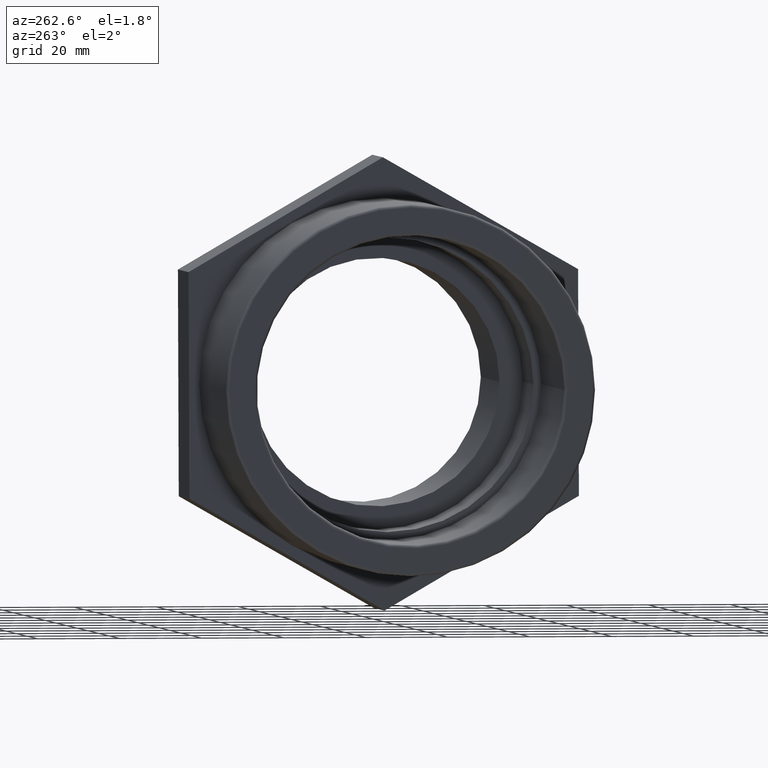
[diagram: clean part render]
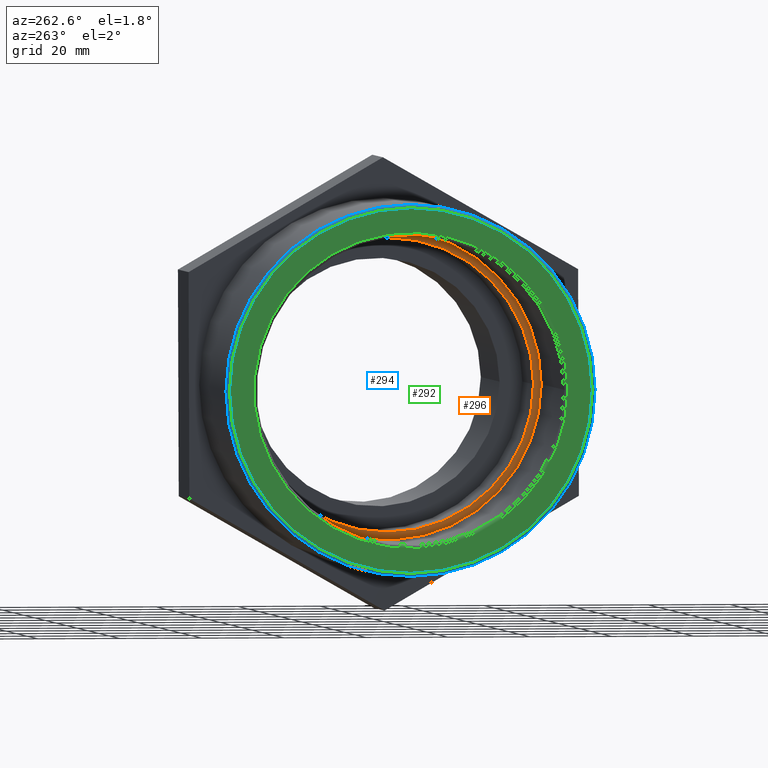
[diagram: same view with three faces highlighted in distinct colors, each labeled with its STEP entity id]
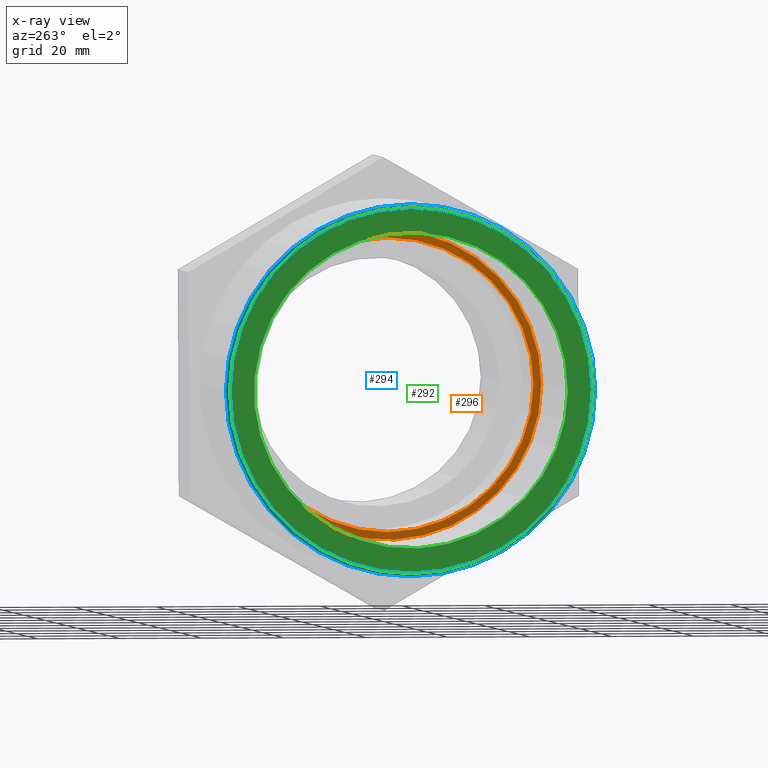
[diagram: x-ray of the same camera — body ghosted, the three highlighted faces saturated]
A machine part, auxiliary view with three faces highlighted in distinct colors.
The next image is the same camera in x-ray (body ghosted, the three faces saturated) — at least one of them is partly hidden behind the body in this view.
Their STEP definitions:

[orange] entity #296 — the highlighted planar face has unit normal (-1, -0, 0).
#30=FACE_BOUND('',#101,.T.);
#44=CIRCLE('',#326,37.5);
#47=CIRCLE('',#332,35.625);
#69=FACE_OUTER_BOUND('',#100,.T.);
#100=EDGE_LOOP('',(#248));
#101=EDGE_LOOP('',(#249));
#167=VERTEX_POINT('',#491);
#170=VERTEX_POINT('',#500);
#199=EDGE_CURVE('',#167,#167,#44,.T.);
#202=EDGE_CURVE('',#170,#170,#47,.T.);
#248=ORIENTED_EDGE('',*,*,#199,.T.);
#249=ORIENTED_EDGE('',*,*,#202,.F.);
#276=PLANE('',#331);
#296=ADVANCED_FACE('',(#69,#30),#276,.T.);
#326=AXIS2_PLACEMENT_3D('',#492,#404,#405);
#331=AXIS2_PLACEMENT_3D('',#499,#414,#415);
#332=AXIS2_PLACEMENT_3D('',#501,#416,#417);
#404=DIRECTION('center_axis',(-1.,-6.73555739531044E-16,0.));
#405=DIRECTION('ref_axis',(0.,0.,1.));
#414=DIRECTION('center_axis',(-1.,-6.73555739531044E-16,0.));
#415=DIRECTION('ref_axis',(0.,0.,1.));
#416=DIRECTION('center_axis',(-1.,-6.73555739531044E-16,0.));
#417=DIRECTION('ref_axis',(0.,0.,1.));
#491=CARTESIAN_POINT('',(-6.5,-37.5,0.));
#492=CARTESIAN_POINT('Origin',(-6.50000000000003,4.89858719658939E-15,0.));
#499=CARTESIAN_POINT('Origin',(-6.5,-35.625,0.));
#500=CARTESIAN_POINT('',(-6.5,-35.625,0.));
#501=CARTESIAN_POINT('Origin',(-6.50000000000003,4.8985871965894E-15,0.));

[blue] entity #294 — the highlighted toroidal blend (fillet) surface has major radius 44.25 mm and minor (blend) radius 0.75 mm.
#28=FACE_BOUND('',#97,.T.);
#43=CIRCLE('',#324,44.25);
#45=CIRCLE('',#328,45.);
#52=TOROIDAL_SURFACE('',#327,44.25,0.75);
#67=FACE_OUTER_BOUND('',#96,.T.);
#96=EDGE_LOOP('',(#244));
#97=EDGE_LOOP('',(#245));
#166=VERTEX_POINT('',#488);
#168=VERTEX_POINT('',#494);
#198=EDGE_CURVE('',#166,#166,#43,.T.);
#200=EDGE_CURVE('',#168,#168,#45,.T.);
#244=ORIENTED_EDGE('',*,*,#200,.T.);
#245=ORIENTED_EDGE('',*,*,#198,.T.);
#294=ADVANCED_FACE('',(#67,#28),#52,.T.);
#324=AXIS2_PLACEMENT_3D('',#489,#400,#401);
#327=AXIS2_PLACEMENT_3D('',#493,#406,#407);
#328=AXIS2_PLACEMENT_3D('',#495,#408,#409);
#400=DIRECTION('center_axis',(1.,6.73555739531044E-16,0.));
#401=DIRECTION('ref_axis',(-6.73555739531044E-16,1.,6.12323399573677E-17));
#406=DIRECTION('center_axis',(-1.,-6.73555739531044E-16,0.));
#407=DIRECTION('ref_axis',(0.,0.,1.));
#408=DIRECTION('center_axis',(-1.,-6.73555739531044E-16,0.));
#409=DIRECTION('ref_axis',(-6.72301720467456E-16,1.,6.12323399573677E-17));
#488=CARTESIAN_POINT('',(-50.5,-44.25,-8.12859312934056E-15));
#489=CARTESIAN_POINT('Origin',(-50.5,-2.47378653427765E-14,0.));
#493=CARTESIAN_POINT('Origin',(-49.75,-2.42326985381283E-14,0.));
#494=CARTESIAN_POINT('',(-49.75,-45.,2.75545529808154E-15));
#495=CARTESIAN_POINT('Origin',(-49.75,-2.42326985381283E-14,0.));

[green] entity #292 — the highlighted planar face has unit normal (-1, -0, 0).
#26=FACE_BOUND('',#93,.T.);
#41=CIRCLE('',#321,38.25);
#43=CIRCLE('',#324,44.25);
#65=FACE_OUTER_BOUND('',#92,.T.);
#92=EDGE_LOOP('',(#240));
#93=EDGE_LOOP('',(#241));
#164=VERTEX_POINT('',#483);
#166=VERTEX_POINT('',#488);
#196=EDGE_CURVE('',#164,#164,#41,.T.);
#198=EDGE_CURVE('',#166,#166,#43,.T.);
#240=ORIENTED_EDGE('',*,*,#198,.F.);
#241=ORIENTED_EDGE('',*,*,#196,.F.);
#275=PLANE('',#323);
#292=ADVANCED_FACE('',(#65,#26),#275,.T.);
#321=AXIS2_PLACEMENT_3D('',#484,#394,#395);
#323=AXIS2_PLACEMENT_3D('',#487,#398,#399);
#324=AXIS2_PLACEMENT_3D('',#489,#400,#401);
#394=DIRECTION('center_axis',(-1.,-6.73555739531044E-16,0.));
#395=DIRECTION('ref_axis',(-6.73555739531044E-16,1.,6.12323399573677E-17));
#398=DIRECTION('center_axis',(-1.,-6.73555739531044E-16,0.));
#399=DIRECTION('ref_axis',(0.,0.,1.));
#400=DIRECTION('center_axis',(1.,6.73555739531044E-16,0.));
#401=DIRECTION('ref_axis',(-6.73555739531044E-16,1.,6.12323399573677E-17));
#483=CARTESIAN_POINT('',(-50.5,-38.25,2.34213700336931E-15));
#484=CARTESIAN_POINT('Origin',(-50.5,-2.47378653427765E-14,0.));
#487=CARTESIAN_POINT('Origin',(-50.5,-37.5,0.));
#488=CARTESIAN_POINT('',(-50.5,-44.25,-8.12859312934056E-15));
#489=CARTESIAN_POINT('Origin',(-50.5,-2.47378653427765E-14,0.));